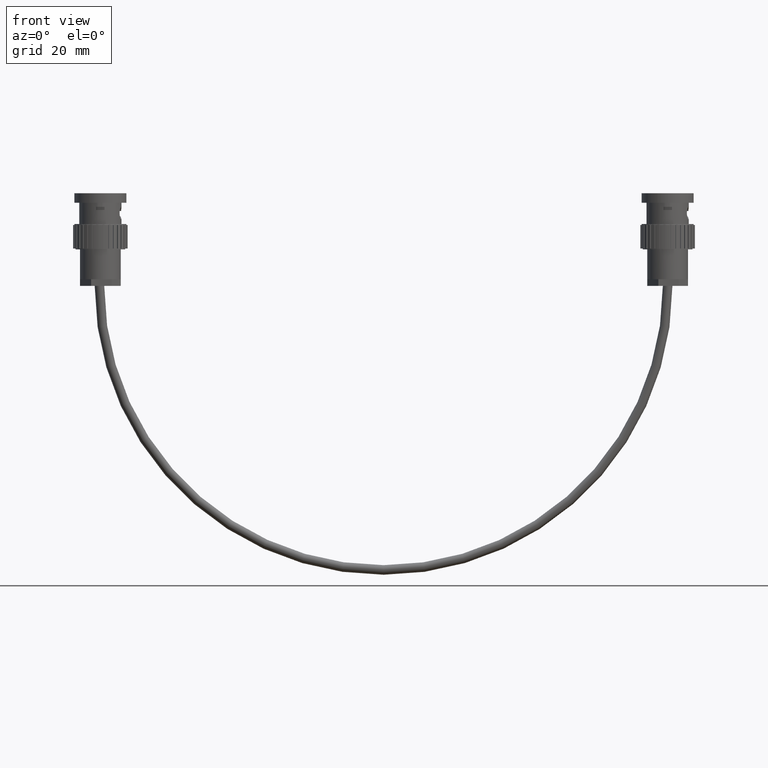
[diagram: clean part render]
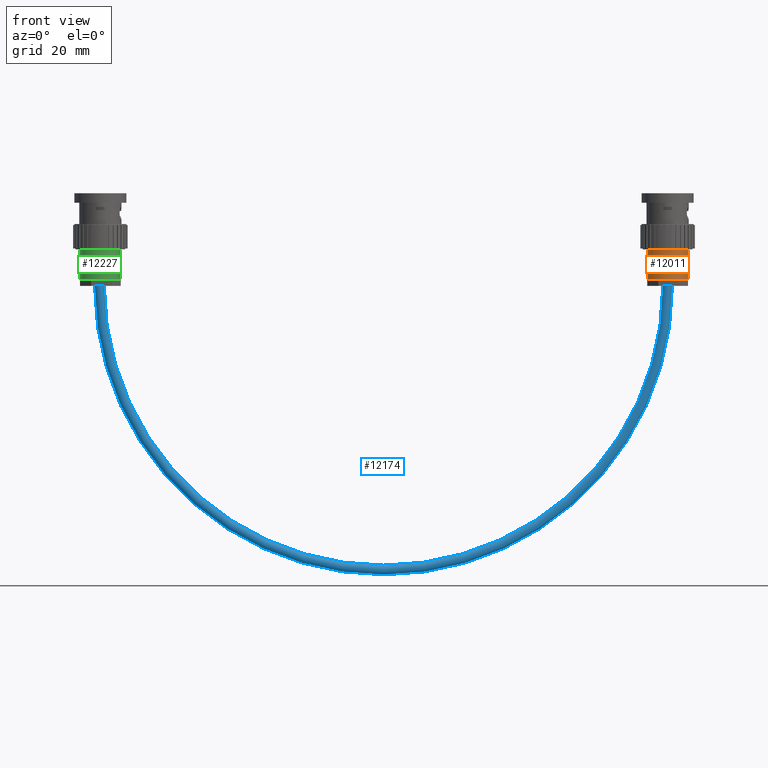
[diagram: same view with three faces highlighted in distinct colors, each labeled with its STEP entity id]
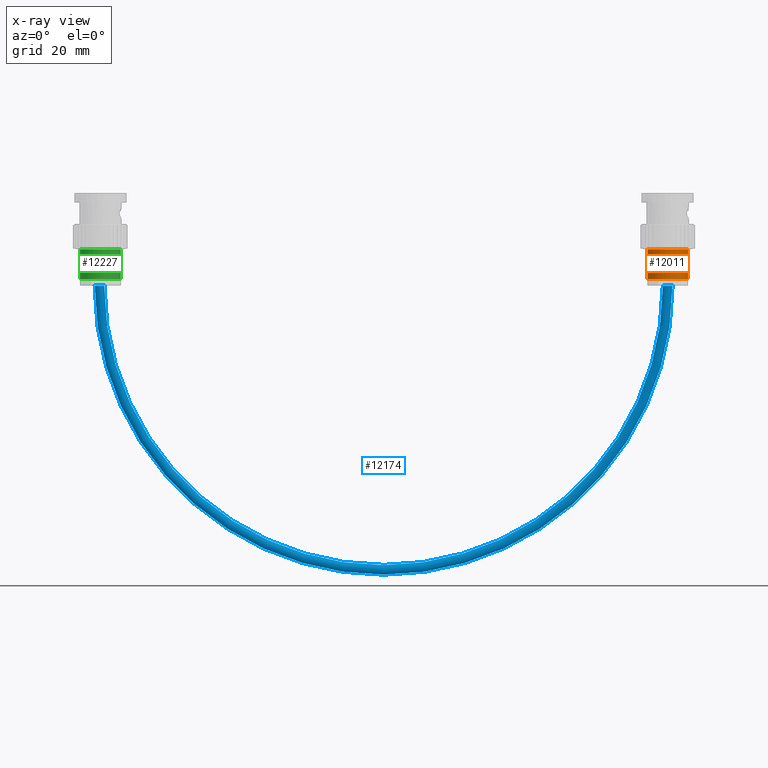
[diagram: x-ray of the same camera — body ghosted, the three highlighted faces saturated]
A machine part, front view with three faces highlighted in distinct colors.
The next image is the same camera in x-ray (body ghosted, the three faces saturated) — at least one of them is partly hidden behind the body in this view.
Their STEP definitions:

[orange] entity #12011 — the highlighted cylindrical surface (edge-blend (fillet) strip) has radius 5.461 mm, axis along (-0, -0, 1).
#1136 = ORIENTED_EDGE ( 'NONE', *, *, #12567, .F. ) ;
#1137 = ORIENTED_EDGE ( 'NONE', *, *, #4598, .T. ) ;
#1138 = ORIENTED_EDGE ( 'NONE', *, *, #4601, .T. ) ;
#1139 = ORIENTED_EDGE ( 'NONE', *, *, #4604, .T. ) ;
#1140 = ORIENTED_EDGE ( 'NONE', *, *, #4607, .T. ) ;
#1141 = ORIENTED_EDGE ( 'NONE', *, *, #12569, .T. ) ;
#1142 = ORIENTED_EDGE ( 'NONE', *, *, #4610, .F. ) ;
#4062 = EDGE_LOOP ( 'NONE', ( #1136, #1137, #1138, #1139, #1140, #1141, #1142 ) ) ;
#4598 = EDGE_CURVE ( 'NONE', #17031, #17119, #9668, .T. ) ;
#4601 = EDGE_CURVE ( 'NONE', #17119, #17120, #9674, .T. ) ;
#4604 = EDGE_CURVE ( 'NONE', #17120, #17129, #9677, .T. ) ;
#4607 = EDGE_CURVE ( 'NONE', #17129, #17014, #9682, .T. ) ;
#4610 = EDGE_CURVE ( 'NONE', #17115, #17194, #9692, .T. ) ;
#5290 = CARTESIAN_POINT ( 'NONE',  ( 6.205136485393062200, 0.0000000000000000000, -0.9079046006083559800 ) ) ;
#5307 = CARTESIAN_POINT ( 'NONE',  ( 5.775136485393062500, 2.632990618166812200E-017, -0.9079046006083559800 ) ) ;
#5391 = CARTESIAN_POINT ( 'NONE',  ( 5.775136485393062500, 2.632990618166812200E-017, -0.5929046006083559300 ) ) ;
#5395 = CARTESIAN_POINT ( 'NONE',  ( 5.775438368402100200, -0.01138940562694285900, -0.9079046006083559800 ) ) ;
#5396 = CARTESIAN_POINT ( 'NONE',  ( 5.892650941504519400, -0.1916287262723284100, -0.9079046006083559800 ) ) ;
#5405 = CARTESIAN_POINT ( 'NONE',  ( 6.107349058495480600, -0.1802393206453854800, -0.9079046006083559800 ) ) ;
#5470 = CARTESIAN_POINT ( 'NONE',  ( 6.205136485393062200, 0.0000000000000000000, -0.5929046006083559300 ) ) ;
#8037 = CARTESIAN_POINT ( 'NONE',  ( 5.990136485393062300, 0.0000000000000000000, -0.9079046006083559800 ) ) ;
#8038 = DIRECTION ( 'NONE',  ( -0.0000000000000000000, -0.0000000000000000000, 1.000000000000000000 ) ) ;
#8039 = DIRECTION ( 'NONE',  ( 1.000000000000000000, 0.0000000000000000000, 0.0000000000000000000 ) ) ;
#8044 = CARTESIAN_POINT ( 'NONE',  ( 5.990136485393062300, 0.0000000000000000000, -0.9079046006083559800 ) ) ;
#8045 = DIRECTION ( 'NONE',  ( -0.0000000000000000000, -0.0000000000000000000, 1.000000000000000000 ) ) ;
#8046 = DIRECTION ( 'NONE',  ( 1.000000000000000000, 0.0000000000000000000, 0.0000000000000000000 ) ) ;
#8051 = CARTESIAN_POINT ( 'NONE',  ( 5.990136485393062300, 0.0000000000000000000, -0.9079046006083559800 ) ) ;
#8052 = DIRECTION ( 'NONE',  ( -0.0000000000000000000, -0.0000000000000000000, 1.000000000000000000 ) ) ;
#8053 = DIRECTION ( 'NONE',  ( 1.000000000000000000, 0.0000000000000000000, 0.0000000000000000000 ) ) ;
#8058 = CARTESIAN_POINT ( 'NONE',  ( 5.990136485393062300, 0.0000000000000000000, -0.9079046006083559800 ) ) ;
#8059 = DIRECTION ( 'NONE',  ( -0.0000000000000000000, -0.0000000000000000000, 1.000000000000000000 ) ) ;
#8060 = DIRECTION ( 'NONE',  ( 1.000000000000000000, 0.0000000000000000000, 0.0000000000000000000 ) ) ;
#8064 = CARTESIAN_POINT ( 'NONE',  ( 5.990136485393062300, 0.0000000000000000000, -0.5929046006083559300 ) ) ;
#8065 = DIRECTION ( 'NONE',  ( -0.0000000000000000000, -0.0000000000000000000, 1.000000000000000000 ) ) ;
#8066 = DIRECTION ( 'NONE',  ( 1.000000000000000000, 0.0000000000000000000, 0.0000000000000000000 ) ) ;
#8563 = FACE_OUTER_BOUND ( 'NONE', #4062, .T. ) ;
#8569 = CYLINDRICAL_SURFACE ( 'NONE', #9093, 0.2149999999999997500 ) ;
#9093 = AXIS2_PLACEMENT_3D ( 'NONE', #10834, #10833, #10813 ) ;
#9668 = CIRCLE ( 'NONE', #17862, 0.2149999999999997500 ) ;
#9674 = CIRCLE ( 'NONE', #17863, 0.2149999999999997500 ) ;
#9677 = CIRCLE ( 'NONE', #17864, 0.2149999999999997500 ) ;
#9682 = CIRCLE ( 'NONE', #17865, 0.2149999999999997500 ) ;
#9692 = CIRCLE ( 'NONE', #17866, 0.2149999999999997500 ) ;
#10813 = DIRECTION ( 'NONE',  ( 1.000000000000000000, 0.0000000000000000000, 0.0000000000000000000 ) ) ;
#10833 = DIRECTION ( 'NONE',  ( -0.0000000000000000000, -0.0000000000000000000, 1.000000000000000000 ) ) ;
#10834 = CARTESIAN_POINT ( 'NONE',  ( 5.990136485393062300, 0.0000000000000000000, 0.0000000000000000000 ) ) ;
#12011 = ADVANCED_FACE ( 'NONE', ( #8563 ), #8569, .T. ) ;
#12567 = EDGE_CURVE ( 'NONE', #17031, #17115, #14398, .T. ) ;
#12569 = EDGE_CURVE ( 'NONE', #17014, #17194, #14405, .T. ) ;
#14398 = LINE ( 'NONE', #16120, #14404 ) ;
#14404 = VECTOR ( 'NONE', #16114, 39.37007874015748100 ) ;
#14405 = LINE ( 'NONE', #16119, #14407 ) ;
#14407 = VECTOR ( 'NONE', #16118, 39.37007874015748100 ) ;
#16114 = DIRECTION ( 'NONE',  ( -0.0000000000000000000, -0.0000000000000000000, 1.000000000000000000 ) ) ;
#16118 = DIRECTION ( 'NONE',  ( -0.0000000000000000000, -0.0000000000000000000, 1.000000000000000000 ) ) ;
#16119 = CARTESIAN_POINT ( 'NONE',  ( 6.205136485393062200, 0.0000000000000000000, 0.0000000000000000000 ) ) ;
#16120 = CARTESIAN_POINT ( 'NONE',  ( 5.775136485393062500, 2.632990618166809100E-017, 0.0000000000000000000 ) ) ;
#17014 = VERTEX_POINT ( 'NONE', #5290 ) ;
#17031 = VERTEX_POINT ( 'NONE', #5307 ) ;
#17115 = VERTEX_POINT ( 'NONE', #5391 ) ;
#17119 = VERTEX_POINT ( 'NONE', #5395 ) ;
#17120 = VERTEX_POINT ( 'NONE', #5396 ) ;
#17129 = VERTEX_POINT ( 'NONE', #5405 ) ;
#17194 = VERTEX_POINT ( 'NONE', #5470 ) ;
#17862 = AXIS2_PLACEMENT_3D ( 'NONE', #8037, #8038, #8039 ) ;
#17863 = AXIS2_PLACEMENT_3D ( 'NONE', #8044, #8045, #8046 ) ;
#17864 = AXIS2_PLACEMENT_3D ( 'NONE', #8051, #8052, #8053 ) ;
#17865 = AXIS2_PLACEMENT_3D ( 'NONE', #8058, #8059, #8060 ) ;
#17866 = AXIS2_PLACEMENT_3D ( 'NONE', #8064, #8065, #8066 ) ;

[blue] entity #12174 — the highlighted toroidal blend (fillet) surface has major radius 76.2 mm and minor (blend) radius 1.2832 mm.
#1328 = CARTESIAN_POINT ( 'NONE',  ( 2.990136485393062300, 0.0000000000000000000, -0.9779046006083562700 ) ) ;
#1329 = DIRECTION ( 'NONE',  ( 0.0000000000000000000, 1.000000000000000000, 0.0000000000000000000 ) ) ;
#1330 = DIRECTION ( 'NONE',  ( 0.0000000000000000000, 0.0000000000000000000, 1.000000000000000000 ) ) ;
#1341 = CARTESIAN_POINT ( 'NONE',  ( 2.990136485393062300, -6.186704167039315200E-018, -0.9779046006083562700 ) ) ;
#1342 = DIRECTION ( 'NONE',  ( 0.0000000000000000000, 1.000000000000000000, 0.0000000000000000000 ) ) ;
#1343 = DIRECTION ( 'NONE',  ( 0.0000000000000000000, 0.0000000000000000000, 1.000000000000000000 ) ) ;
#1347 = CARTESIAN_POINT ( 'NONE',  ( 5.990136485393062300, 0.0000000000000000000, -0.9779046006083560400 ) ) ;
#1348 = DIRECTION ( 'NONE',  ( 0.0000000000000000000, 0.0000000000000000000, 1.000000000000000000 ) ) ;
#1349 = DIRECTION ( 'NONE',  ( 1.000000000000000000, 0.0000000000000000000, 0.0000000000000000000 ) ) ;
#1352 = CARTESIAN_POINT ( 'NONE',  ( -0.009863514606937271600, 0.0000000000000000000, -0.9779046006083567100 ) ) ;
#1353 = DIRECTION ( 'NONE',  ( 1.224646799147353200E-016, 0.0000000000000000000, -1.000000000000000000 ) ) ;
#1354 = DIRECTION ( 'NONE',  ( -1.000000000000000000, 0.0000000000000000000, 0.0000000000000000000 ) ) ;
#1728 = CIRCLE ( 'NONE', #17723, 3.050518273279665000 ) ;
#1730 = CIRCLE ( 'NONE', #17726, 2.949481726720334200 ) ;
#1731 = CIRCLE ( 'NONE', #17728, 0.05051827327966535600 ) ;
#1737 = CIRCLE ( 'NONE', #17729, 0.05051827327966512700 ) ;
#3032 = ORIENTED_EDGE ( 'NONE', *, *, #3565, .F. ) ;
#3033 = ORIENTED_EDGE ( 'NONE', *, *, #3572, .F. ) ;
#3034 = ORIENTED_EDGE ( 'NONE', *, *, #3568, .T. ) ;
#3035 = ORIENTED_EDGE ( 'NONE', *, *, #3573, .T. ) ;
#3565 = EDGE_CURVE ( 'NONE', #17224, #17227, #1728, .T. ) ;
#3568 = EDGE_CURVE ( 'NONE', #17233, #17202, #1730, .T. ) ;
#3572 = EDGE_CURVE ( 'NONE', #17233, #17224, #1731, .T. ) ;
#3573 = EDGE_CURVE ( 'NONE', #17202, #17227, #1737, .T. ) ;
#4031 = EDGE_LOOP ( 'NONE', ( #3032, #3033, #3034, #3035 ) ) ;
#5478 = CARTESIAN_POINT ( 'NONE',  ( 0.04065475867272785200, -6.186704167039302100E-018, -0.9779046006083567100 ) ) ;
#5500 = CARTESIAN_POINT ( 'NONE',  ( 6.040654758672727300, 0.0000000000000000000, -0.9779046006083560400 ) ) ;
#5503 = CARTESIAN_POINT ( 'NONE',  ( -0.06038178788660250600, 0.0000000000000000000, -0.9779046006083567100 ) ) ;
#5509 = CARTESIAN_POINT ( 'NONE',  ( 5.939618212113396500, 6.186704167039286700E-018, -0.9779046006083560400 ) ) ;
#8765 = TOROIDAL_SURFACE ( 'NONE', #9249, 2.999999999999999600, 0.05051827327966512700 ) ;
#8772 = FACE_OUTER_BOUND ( 'NONE', #4031, .T. ) ;
#9249 = AXIS2_PLACEMENT_3D ( 'NONE', #11549, #11547, #11552 ) ;
#11547 = DIRECTION ( 'NONE',  ( 0.0000000000000000000, 1.000000000000000000, 0.0000000000000000000 ) ) ;
#11549 = CARTESIAN_POINT ( 'NONE',  ( 2.990136485393062300, 0.0000000000000000000, -0.9779046006083562700 ) ) ;
#11552 = DIRECTION ( 'NONE',  ( 0.0000000000000000000, 0.0000000000000000000, 1.000000000000000000 ) ) ;
#12174 = ADVANCED_FACE ( 'NONE', ( #8772 ), #8765, .T. ) ;
#17202 = VERTEX_POINT ( 'NONE', #5478 ) ;
#17224 = VERTEX_POINT ( 'NONE', #5500 ) ;
#17227 = VERTEX_POINT ( 'NONE', #5503 ) ;
#17233 = VERTEX_POINT ( 'NONE', #5509 ) ;
#17723 = AXIS2_PLACEMENT_3D ( 'NONE', #1328, #1329, #1330 ) ;
#17726 = AXIS2_PLACEMENT_3D ( 'NONE', #1341, #1342, #1343 ) ;
#17728 = AXIS2_PLACEMENT_3D ( 'NONE', #1347, #1348, #1349 ) ;
#17729 = AXIS2_PLACEMENT_3D ( 'NONE', #1352, #1353, #1354 ) ;

[green] entity #12227 — the highlighted cylindrical surface (edge-blend (fillet) strip) has radius 5.461 mm, axis along (-0, -0, 1).
#2228 = AXIS2_PLACEMENT_3D ( 'NONE', #11739, #11737, #11732 ) ;
#3230 = EDGE_CURVE ( 'NONE', #10411, #10419, #15557, .T. ) ;
#3232 = EDGE_CURVE ( 'NONE', #17506, #10410, #15559, .T. ) ;
#3252 = EDGE_CURVE ( 'NONE', #10411, #10442, #15590, .T. ) ;
#3255 = EDGE_CURVE ( 'NONE', #10442, #10446, #15594, .T. ) ;
#3258 = EDGE_CURVE ( 'NONE', #10446, #10444, #15599, .T. ) ;
#3261 = EDGE_CURVE ( 'NONE', #10444, #17506, #15604, .T. ) ;
#3264 = EDGE_CURVE ( 'NONE', #10419, #10410, #15614, .T. ) ;
#5727 = CARTESIAN_POINT ( 'NONE',  ( 0.2150000000000000000, 0.0000000000000000000, -0.9079046006083559800 ) ) ;
#6603 = CARTESIAN_POINT ( 'NONE',  ( 0.2150000000000000000, 0.0000000000000000000, -0.5929046006083559300 ) ) ;
#6604 = CARTESIAN_POINT ( 'NONE',  ( -0.2150000000000000000, 2.632990618166809100E-017, -0.9079046006083559800 ) ) ;
#6612 = CARTESIAN_POINT ( 'NONE',  ( -0.2150000000000000000, 2.632990618166809100E-017, -0.5929046006083559300 ) ) ;
#6635 = CARTESIAN_POINT ( 'NONE',  ( -0.2146981169909621100, -0.01138940562694285900, -0.9079046006083559800 ) ) ;
#6637 = CARTESIAN_POINT ( 'NONE',  ( 0.1172125731024189600, -0.1802393206453854800, -0.9079046006083559800 ) ) ;
#6639 = CARTESIAN_POINT ( 'NONE',  ( -0.09748554388854291400, -0.1916287262723284100, -0.9079046006083559800 ) ) ;
#8144 = EDGE_LOOP ( 'NONE', ( #10621, #10622, #10623, #10624, #10625, #10626, #10627 ) ) ;
#8850 = FACE_OUTER_BOUND ( 'NONE', #8144, .T. ) ;
#8854 = CYLINDRICAL_SURFACE ( 'NONE', #2228, 0.2150000000000000000 ) ;
#10410 = VERTEX_POINT ( 'NONE', #6603 ) ;
#10411 = VERTEX_POINT ( 'NONE', #6604 ) ;
#10419 = VERTEX_POINT ( 'NONE', #6612 ) ;
#10442 = VERTEX_POINT ( 'NONE', #6635 ) ;
#10444 = VERTEX_POINT ( 'NONE', #6637 ) ;
#10446 = VERTEX_POINT ( 'NONE', #6639 ) ;
#10621 = ORIENTED_EDGE ( 'NONE', *, *, #3230, .F. ) ;
#10622 = ORIENTED_EDGE ( 'NONE', *, *, #3252, .T. ) ;
#10623 = ORIENTED_EDGE ( 'NONE', *, *, #3255, .T. ) ;
#10624 = ORIENTED_EDGE ( 'NONE', *, *, #3258, .T. ) ;
#10625 = ORIENTED_EDGE ( 'NONE', *, *, #3261, .T. ) ;
#10626 = ORIENTED_EDGE ( 'NONE', *, *, #3232, .T. ) ;
#10627 = ORIENTED_EDGE ( 'NONE', *, *, #3264, .F. ) ;
#11732 = DIRECTION ( 'NONE',  ( 1.000000000000000000, 0.0000000000000000000, 0.0000000000000000000 ) ) ;
#11737 = DIRECTION ( 'NONE',  ( -0.0000000000000000000, -0.0000000000000000000, 1.000000000000000000 ) ) ;
#11739 = CARTESIAN_POINT ( 'NONE',  ( 0.0000000000000000000, 0.0000000000000000000, 0.0000000000000000000 ) ) ;
#12227 = ADVANCED_FACE ( 'NONE', ( #8850 ), #8854, .T. ) ;
#15557 = LINE ( 'NONE', #18092, #15561 ) ;
#15559 = LINE ( 'NONE', #18096, #15564 ) ;
#15561 = VECTOR ( 'NONE', #18090, 39.37007874015748100 ) ;
#15564 = VECTOR ( 'NONE', #18091, 39.37007874015748100 ) ;
#15590 = CIRCLE ( 'NONE', #17648, 0.2150000000000000000 ) ;
#15594 = CIRCLE ( 'NONE', #17649, 0.2150000000000000000 ) ;
#15599 = CIRCLE ( 'NONE', #17650, 0.2150000000000000000 ) ;
#15604 = CIRCLE ( 'NONE', #17651, 0.2150000000000000000 ) ;
#15614 = CIRCLE ( 'NONE', #17652, 0.2150000000000000000 ) ;
#17506 = VERTEX_POINT ( 'NONE', #5727 ) ;
#17648 = AXIS2_PLACEMENT_3D ( 'NONE', #18148, #18149, #18150 ) ;
#17649 = AXIS2_PLACEMENT_3D ( 'NONE', #18155, #18156, #18157 ) ;
#17650 = AXIS2_PLACEMENT_3D ( 'NONE', #18162, #18163, #18164 ) ;
#17651 = AXIS2_PLACEMENT_3D ( 'NONE', #18168, #18169, #18170 ) ;
#17652 = AXIS2_PLACEMENT_3D ( 'NONE', #18173, #18174, #18175 ) ;
#18090 = DIRECTION ( 'NONE',  ( -0.0000000000000000000, -0.0000000000000000000, 1.000000000000000000 ) ) ;
#18091 = DIRECTION ( 'NONE',  ( -0.0000000000000000000, -0.0000000000000000000, 1.000000000000000000 ) ) ;
#18092 = CARTESIAN_POINT ( 'NONE',  ( -0.2150000000000000000, 2.632990618166809100E-017, 0.0000000000000000000 ) ) ;
#18096 = CARTESIAN_POINT ( 'NONE',  ( 0.2150000000000000000, 0.0000000000000000000, 0.0000000000000000000 ) ) ;
#18148 = CARTESIAN_POINT ( 'NONE',  ( 0.0000000000000000000, 0.0000000000000000000, -0.9079046006083559800 ) ) ;
#18149 = DIRECTION ( 'NONE',  ( -0.0000000000000000000, -0.0000000000000000000, 1.000000000000000000 ) ) ;
#18150 = DIRECTION ( 'NONE',  ( 1.000000000000000000, 0.0000000000000000000, 0.0000000000000000000 ) ) ;
#18155 = CARTESIAN_POINT ( 'NONE',  ( 0.0000000000000000000, 0.0000000000000000000, -0.9079046006083559800 ) ) ;
#18156 = DIRECTION ( 'NONE',  ( -0.0000000000000000000, -0.0000000000000000000, 1.000000000000000000 ) ) ;
#18157 = DIRECTION ( 'NONE',  ( 1.000000000000000000, 0.0000000000000000000, 0.0000000000000000000 ) ) ;
#18162 = CARTESIAN_POINT ( 'NONE',  ( 0.0000000000000000000, 0.0000000000000000000, -0.9079046006083559800 ) ) ;
#18163 = DIRECTION ( 'NONE',  ( -0.0000000000000000000, -0.0000000000000000000, 1.000000000000000000 ) ) ;
#18164 = DIRECTION ( 'NONE',  ( 1.000000000000000000, 0.0000000000000000000, 0.0000000000000000000 ) ) ;
#18168 = CARTESIAN_POINT ( 'NONE',  ( 0.0000000000000000000, 0.0000000000000000000, -0.9079046006083559800 ) ) ;
#18169 = DIRECTION ( 'NONE',  ( -0.0000000000000000000, -0.0000000000000000000, 1.000000000000000000 ) ) ;
#18170 = DIRECTION ( 'NONE',  ( 1.000000000000000000, 0.0000000000000000000, 0.0000000000000000000 ) ) ;
#18173 = CARTESIAN_POINT ( 'NONE',  ( 0.0000000000000000000, 0.0000000000000000000, -0.5929046006083559300 ) ) ;
#18174 = DIRECTION ( 'NONE',  ( -0.0000000000000000000, -0.0000000000000000000, 1.000000000000000000 ) ) ;
#18175 = DIRECTION ( 'NONE',  ( 1.000000000000000000, 0.0000000000000000000, 0.0000000000000000000 ) ) ;